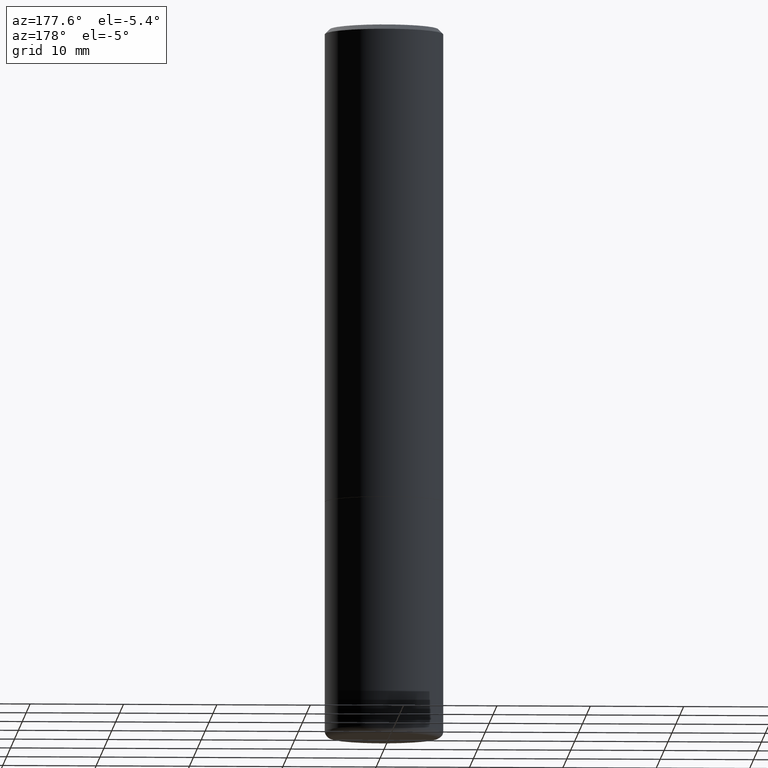
[diagram: clean part render]
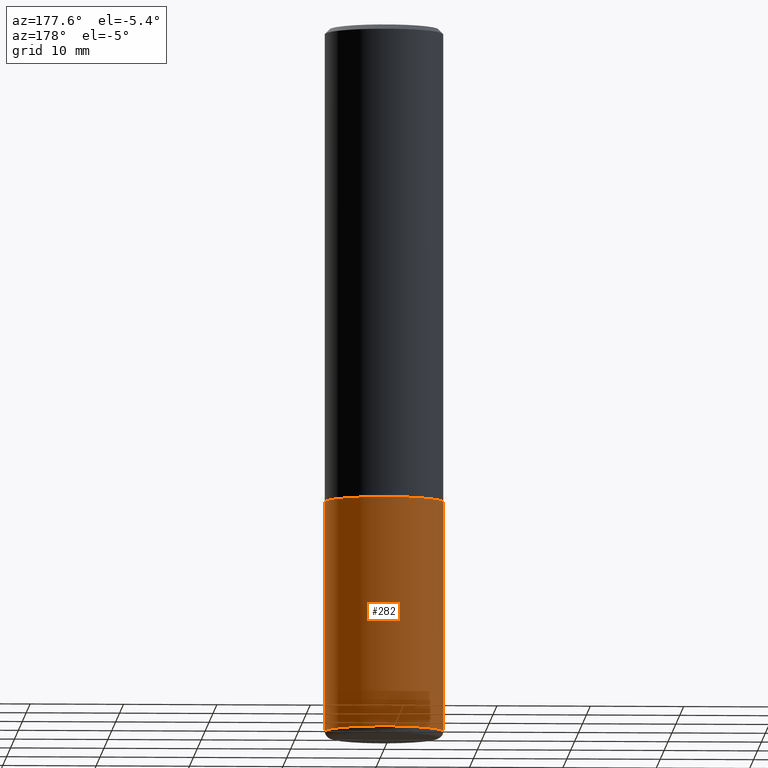
[diagram: same view with one face highlighted and labeled with its STEP entity id]
A machine part, auxiliary view. The second image highlights one B-rep face of the part: STEP entity #282.
In plain terms, the highlighted cylindrical surface (partial cylindrical patch) has radius 6.35 mm, axis along (-0, 0, 1).
Its self-contained STEP definition (entity closure, byte-faithful):
#3 = VERTEX_POINT ( 'NONE', #41 ) ;
#19 = DIRECTION ( 'NONE',  ( -2.445468806185136877E-29, 3.491481338843145188E-15, 1.000000000000000000 ) ) ;
#40 = EDGE_CURVE ( 'NONE', #359, #390, #267, .T. ) ;
#41 = CARTESIAN_POINT ( 'NONE',  ( 0.2499999999999998612, -1.211544024578571124E-14, -2.970000000000000195 ) ) ;
#78 = CARTESIAN_POINT ( 'NONE',  ( 7.263042354369856275E-29, -1.036969957636414298E-14, -2.970000000000000195 ) ) ;
#80 = CARTESIAN_POINT ( 'NONE',  ( 0.2500000000000000000, -8.728703347107858632E-15, -2.000000000000000444 ) ) ;
#82 = CIRCLE ( 'NONE', #101, 0.2500000000000000555 ) ;
#101 = AXIS2_PLACEMENT_3D ( 'NONE', #78, #303, #209 ) ;
#114 = DIRECTION ( 'NONE',  ( -2.445468806185136597E-29, 3.491481338843145583E-15, 1.000000000000000000 ) ) ;
#115 = DIRECTION ( 'NONE',  ( -2.445468806185136877E-29, 3.491481338843145188E-15, 1.000000000000000000 ) ) ;
#122 = DIRECTION ( 'NONE',  ( 1.000000000000000000, -6.982962677686266711E-15, 4.876176775795935793E-29 ) ) ;
#140 = FACE_OUTER_BOUND ( 'NONE', #326, .T. ) ;
#154 = ORIENTED_EDGE ( 'NONE', *, *, #40, .F. ) ;
#165 = VERTEX_POINT ( 'NONE', #287 ) ;
#166 = CYLINDRICAL_SURFACE ( 'NONE', #271, 0.2500000000000000000 ) ;
#204 = CARTESIAN_POINT ( 'NONE',  ( -0.2500000000000000000, -6.899974287624967004E-15, -2.000000000000000444 ) ) ;
#209 = DIRECTION ( 'NONE',  ( 1.000000000000000000, -6.982962677686269077E-15, 0.000000000000000000 ) ) ;
#215 = DIRECTION ( 'NONE',  ( 1.000000000000000000, -6.982962677686266711E-15, 0.000000000000000000 ) ) ;
#218 = CARTESIAN_POINT ( 'NONE',  ( -0.2500000000000000000, 1.776356839400250465E-15, -1.229733772563726445E-29 ) ) ;
#220 = VECTOR ( 'NONE', #19, 39.37007874015748143 ) ;
#245 = EDGE_CURVE ( 'NONE', #165, #390, #246, .T. ) ;
#246 = LINE ( 'NONE', #218, #220 ) ;
#267 = CIRCLE ( 'NONE', #340, 0.2500000000000000000 ) ;
#271 = AXIS2_PLACEMENT_3D ( 'NONE', #277, #374, #122 ) ;
#277 = CARTESIAN_POINT ( 'NONE',  ( 0.000000000000000000, 0.000000000000000000, 0.000000000000000000 ) ) ;
#280 = VECTOR ( 'NONE', #115, 39.37007874015748143 ) ;
#282 = ADVANCED_FACE ( 'NONE', ( #140 ), #166, .T. ) ;
#287 = CARTESIAN_POINT ( 'NONE',  ( -0.2499999999999998612, -8.593342736963892519E-15, -2.970000000000000195 ) ) ;
#296 = ORIENTED_EDGE ( 'NONE', *, *, #245, .T. ) ;
#303 = DIRECTION ( 'NONE',  ( -2.445468806185136597E-29, 3.491481338843145583E-15, 1.000000000000000000 ) ) ;
#326 = EDGE_LOOP ( 'NONE', ( #351, #296, #154, #386 ) ) ;
#340 = AXIS2_PLACEMENT_3D ( 'NONE', #397, #114, #215 ) ;
#343 = EDGE_CURVE ( 'NONE', #3, #359, #391, .T. ) ;
#351 = ORIENTED_EDGE ( 'NONE', *, *, #357, .T. ) ;
#357 = EDGE_CURVE ( 'NONE', #3, #165, #82, .T. ) ;
#359 = VERTEX_POINT ( 'NONE', #80 ) ;
#374 = DIRECTION ( 'NONE',  ( -2.445468806185136597E-29, 3.491481338843145583E-15, 1.000000000000000000 ) ) ;
#386 = ORIENTED_EDGE ( 'NONE', *, *, #343, .F. ) ;
#390 = VERTEX_POINT ( 'NONE', #204 ) ;
#391 = LINE ( 'NONE', #395, #280 ) ;
#395 = CARTESIAN_POINT ( 'NONE',  ( 0.2500000000000000000, -1.745740669421566678E-15, 1.219044193948983948E-29 ) ) ;
#397 = CARTESIAN_POINT ( 'NONE',  ( 4.890937612370273754E-29, -6.982962677686291954E-15, -2.000000000000000444 ) ) ;